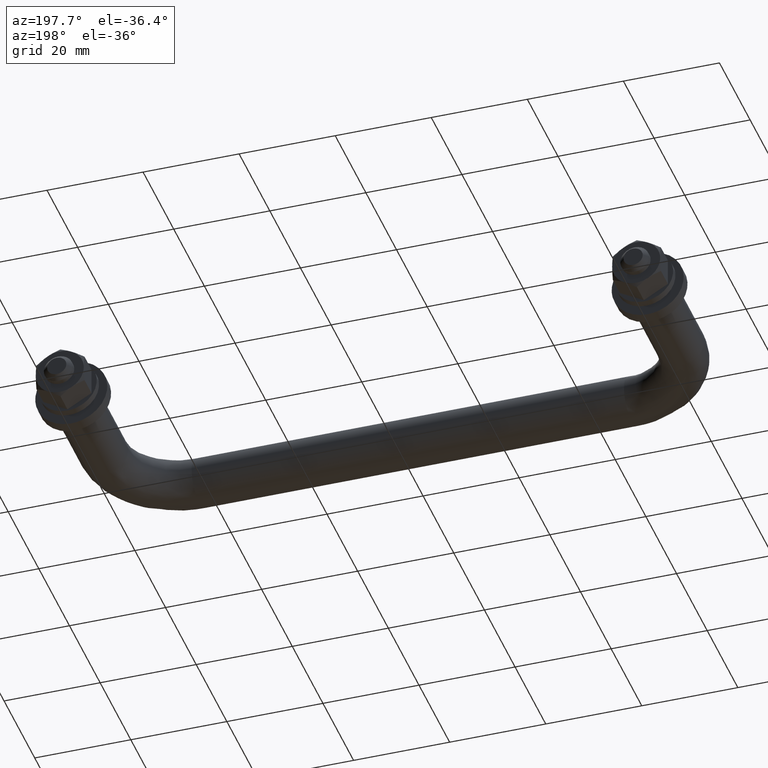
[diagram: clean part render]
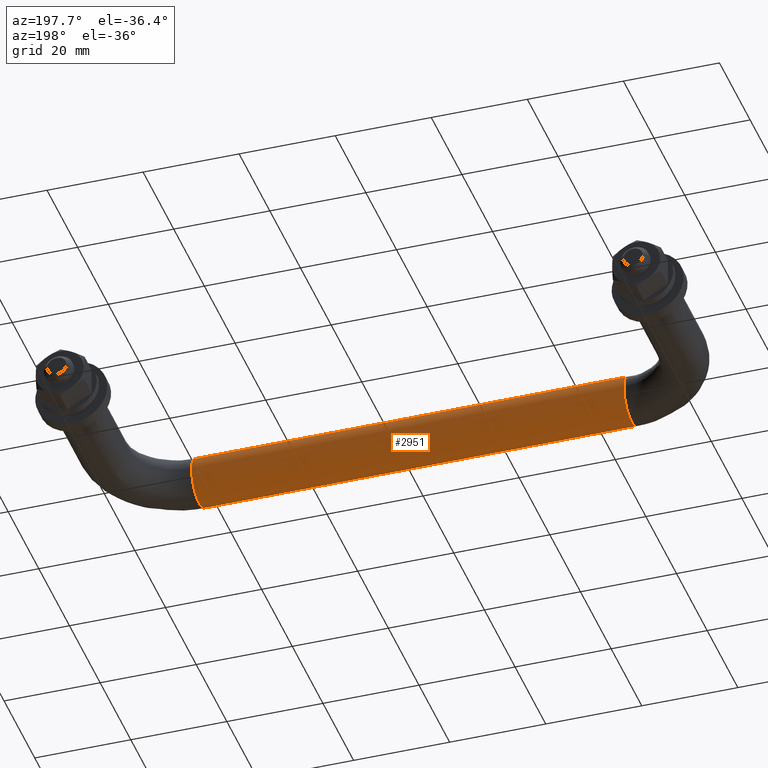
[diagram: same view with one face highlighted and labeled with its STEP entity id]
A machine part, auxiliary view. The second image highlights one B-rep face of the part: STEP entity #2951.
In plain terms, the highlighted face is a freeform B-spline surface patch.
Its self-contained STEP definition (entity closure, byte-faithful):
#2785=CARTESIAN_POINT('',(12.749999996253447,-38.040222708102142,3.969514565427370));
#2786=CARTESIAN_POINT('',(12.749999996253440,-38.389316865543059,3.702145856426702));
#2787=CARTESIAN_POINT('',(12.749999996253440,-38.686386684050618,3.377951038078300));
#2788=CARTESIAN_POINT('',(12.749999996253440,-42.064337722128919,-0.308435645972319));
#2789=CARTESIAN_POINT('',(12.749999996253440,-38.377951038078301,-3.686386684050619));
#2790=CARTESIAN_POINT('',(12.749999996253440,-34.691564354027683,-7.064337722128919));
#2791=CARTESIAN_POINT('',(12.749999996253440,-31.313613315949379,-3.377951038078300));
#2792=CARTESIAN_POINT('',(12.749999996253440,-27.935662277871085,0.308435645972319));
#2793=CARTESIAN_POINT('',(12.749999996253440,-31.622048961921699,3.686386684050619));
#2794=CARTESIAN_POINT('',(107.306250131250180,-38.040222708102128,3.969514565427370));
#2795=CARTESIAN_POINT('',(107.306250131250200,-38.389316865543044,3.702145856426702));
#2796=CARTESIAN_POINT('',(107.306250131250200,-38.686386684050603,3.377951038078300));
#2797=CARTESIAN_POINT('',(107.306250131250220,-42.064337722128904,-0.308435645972319));
#2798=CARTESIAN_POINT('',(107.306250131250200,-38.377951038078287,-3.686386684050619));
#2799=CARTESIAN_POINT('',(107.306250131250220,-34.691564354027676,-7.064337722128919));
#2800=CARTESIAN_POINT('',(107.306250131250200,-31.313613315949372,-3.377951038078300));
#2801=CARTESIAN_POINT('',(107.306250131250220,-27.935662277871071,0.308435645972319));
#2802=CARTESIAN_POINT('',(107.306250131250200,-31.622048961921688,3.686386684050619));
#2810=(BOUNDED_SURFACE()B_SPLINE_SURFACE(2,1,((#2785,#2794),(#2786,#2795),(#2787,#2796),(#2788,#2797),(#2789,#2798),(#2790,#2799),(#2791,#2800),(#2792,#2801),(#2793,#2802)),.UNSPECIFIED.,.F.,.F.,.U.)B_SPLINE_SURFACE_WITH_KNOTS((3,2,2,2,3),(2,2),(0.0,0.994112549695429,9.278383797157336,17.562655044619241,25.846926292081150),(0.0,94.556250134996802),.UNSPECIFIED.)GEOMETRIC_REPRESENTATION_ITEM()RATIONAL_B_SPLINE_SURFACE(((0.938140952186599,0.938140952186599),(0.964852813742386,0.964852813742386),(1.0,1.0),(0.707106781186548,0.707106781186548),(1.0,1.0),(0.707106781186548,0.707106781186548),(1.0,1.0),(0.707106781186548,0.707106781186548),(1.0,1.0)))REPRESENTATION_ITEM('')SURFACE());
#2811=CARTESIAN_POINT('',(105.0,-40.0,0.0));
#2812=VERTEX_POINT('',#2811);
#2813=CARTESIAN_POINT('',(105.000000000448300,-38.040222707736262,3.969514564947689));
#2814=VERTEX_POINT('',#2813);
#2815=CARTESIAN_POINT('',(105.0,-40.0,0.0));
#2816=CARTESIAN_POINT('',(105.000000000000010,-40.0,2.468535205870909));
#2817=CARTESIAN_POINT('',(105.000000000448340,-38.040222707736255,3.969514564947689));
#2825=(BOUNDED_CURVE()B_SPLINE_CURVE(2,(#2815,#2816,#2817),.UNSPECIFIED.,.F.,.U.)B_SPLINE_CURVE_WITH_KNOTS((3,3),(0.500000000000000,0.644916377166535),.UNSPECIFIED.)CURVE()GEOMETRIC_REPRESENTATION_ITEM()RATIONAL_B_SPLINE_CURVE((1.0,0.830219903331637,0.857271138856580))REPRESENTATION_ITEM(''));
#2826=EDGE_CURVE('',#2812,#2814,#2825,.T.);
#2827=ORIENTED_EDGE('',*,*,#2826,.T.);
#2828=CARTESIAN_POINT('',(15.0,-38.040222708103272,3.969514565426509));
#2829=VERTEX_POINT('',#2828);
#2830=CARTESIAN_POINT('',(15.0,-38.040222708103272,3.969514565426509));
#2831=CARTESIAN_POINT('',(105.000000000448300,-38.040222707736262,3.969514564947689));
#2832=QUASI_UNIFORM_CURVE('',1,(#2830,#2831),.UNSPECIFIED.,.F.,.U.);
#2833=EDGE_CURVE('',#2829,#2814,#2832,.T.);
#2834=ORIENTED_EDGE('',*,*,#2833,.F.);
#2835=CARTESIAN_POINT('',(15.0,-40.0,0.0));
#2836=VERTEX_POINT('',#2835);
#2837=CARTESIAN_POINT('',(15.0,-40.0,0.0));
#2838=CARTESIAN_POINT('',(15.000000000000004,-40.000000000000007,2.468535207006407));
#2839=CARTESIAN_POINT('',(14.999999999999998,-38.040222708103265,3.969514565426509));
#2847=(BOUNDED_CURVE()B_SPLINE_CURVE(2,(#2837,#2838,#2839),.UNSPECIFIED.,.F.,.U.)B_SPLINE_CURVE_WITH_KNOTS((3,3),(0.500000000000000,0.644916377221878),.UNSPECIFIED.)CURVE()GEOMETRIC_REPRESENTATION_ITEM()RATIONAL_B_SPLINE_CURVE((1.0,0.830219903266799,0.857271138877241))REPRESENTATION_ITEM(''));
#2848=EDGE_CURVE('',#2836,#2829,#2847,.T.);
#2849=ORIENTED_EDGE('',*,*,#2848,.F.);
#2850=CARTESIAN_POINT('',(14.999999999844659,-35.348666259216770,-4.987828369108522));
#2851=VERTEX_POINT('',#2850);
#2852=CARTESIAN_POINT('',(14.999999999844661,-35.348666259216778,-4.987828369108522));
#2853=CARTESIAN_POINT('',(15.000000000000007,-39.999999999999993,-4.662684233822515));
#2854=CARTESIAN_POINT('',(15.0,-40.0,0.0));
#2862=(BOUNDED_CURVE()B_SPLINE_CURVE(2,(#2852,#2853,#2854),.UNSPECIFIED.,.F.,.U.)B_SPLINE_CURVE_WITH_KNOTS((3,3),(0.262166313557243,0.500000000000000),.UNSPECIFIED.)CURVE()GEOMETRIC_REPRESENTATION_ITEM()RATIONAL_B_SPLINE_CURVE((0.972879876191681,0.721360504142046,1.0))REPRESENTATION_ITEM(''));
#2863=EDGE_CURVE('',#2851,#2836,#2862,.T.);
#2864=ORIENTED_EDGE('',*,*,#2863,.F.);
#2865=CARTESIAN_POINT('',(15.0,-30.0,0.0));
#2866=VERTEX_POINT('',#2865);
#2867=CARTESIAN_POINT('',(15.0,-30.0,0.0));
#2868=CARTESIAN_POINT('',(14.999999999999995,-30.000000000000004,-5.000000000000001));
#2869=CARTESIAN_POINT('',(15.0,-35.0,-5.0));
#2870=CARTESIAN_POINT('',(15.000000000000004,-35.174545580718032,-5.000000000000001));
#2871=CARTESIAN_POINT('',(14.999999999844663,-35.348666259216770,-4.987828369108522));
#2879=(BOUNDED_CURVE()B_SPLINE_CURVE(2,(#2867,#2868,#2869,#2870,#2871),.UNSPECIFIED.,.F.,.U.)B_SPLINE_CURVE_WITH_KNOTS((3,2,3),(0.0,0.250000000000000,0.262166313557243),.UNSPECIFIED.)CURVE()GEOMETRIC_REPRESENTATION_ITEM()RATIONAL_B_SPLINE_CURVE((1.0,0.707106781186548,1.0,0.985746277044502,0.972879876191681))REPRESENTATION_ITEM(''));
#2880=EDGE_CURVE('',#2866,#2851,#2879,.T.);
#2881=ORIENTED_EDGE('',*,*,#2880,.F.);
#2882=CARTESIAN_POINT('',(14.999999999824469,-31.622050203416730,3.686387821537513));
#2883=VERTEX_POINT('',#2882);
#2884=CARTESIAN_POINT('',(14.999999999824468,-31.622050203416741,3.686387821537513));
#2885=CARTESIAN_POINT('',(14.999999999999996,-30.0,2.200053659228634));
#2886=CARTESIAN_POINT('',(15.0,-30.0,0.0));
#2894=(BOUNDED_CURVE()B_SPLINE_CURVE(2,(#2884,#2885,#2886),.UNSPECIFIED.,.F.,.U.)B_SPLINE_CURVE_WITH_KNOTS((3,3),(0.868415158253308,1.0),.UNSPECIFIED.)CURVE()GEOMETRIC_REPRESENTATION_ITEM()RATIONAL_B_SPLINE_CURVE((0.853959787112173,0.845838768615010,1.0))REPRESENTATION_ITEM(''));
#2895=EDGE_CURVE('',#2883,#2866,#2894,.T.);
#2896=ORIENTED_EDGE('',*,*,#2895,.F.);
#2897=CARTESIAN_POINT('',(105.0,-31.622051120767932,3.686388662266402));
#2898=VERTEX_POINT('',#2897);
#2899=CARTESIAN_POINT('',(14.999999999824469,-31.622050203416730,3.686387821537513));
#2900=CARTESIAN_POINT('',(105.0,-31.622051120767932,3.686388662266402));
#2901=QUASI_UNIFORM_CURVE('',1,(#2899,#2900),.UNSPECIFIED.,.F.,.U.);
#2902=EDGE_CURVE('',#2883,#2898,#2901,.T.);
#2903=ORIENTED_EDGE('',*,*,#2902,.T.);
#2904=CARTESIAN_POINT('',(105.0,-30.0,0.0));
#2905=VERTEX_POINT('',#2904);
#2906=CARTESIAN_POINT('',(104.999999999999990,-31.622051120767932,3.686388662266402));
#2907=CARTESIAN_POINT('',(104.999999999999990,-30.000000000000011,2.200054401981904));
#2908=CARTESIAN_POINT('',(105.0,-30.0,0.0));
#2916=(BOUNDED_CURVE()B_SPLINE_CURVE(2,(#2906,#2907,#2908),.UNSPECIFIED.,.F.,.U.)B_SPLINE_CURVE_WITH_KNOTS((3,3),(0.868415120677811,1.0),.UNSPECIFIED.)CURVE()GEOMETRIC_REPRESENTATION_ITEM()RATIONAL_B_SPLINE_CURVE((0.853959791750278,0.845838724592578,1.0))REPRESENTATION_ITEM(''));
#2917=EDGE_CURVE('',#2898,#2905,#2916,.T.);
#2918=ORIENTED_EDGE('',*,*,#2917,.T.);
#2919=CARTESIAN_POINT('',(105.000000127957610,-34.937169908600652,-4.999605222376536));
#2920=VERTEX_POINT('',#2919);
#2921=CARTESIAN_POINT('',(105.0,-30.0,0.0));
#2922=CARTESIAN_POINT('',(104.999999999999990,-30.000000000000007,-4.937559862907233));
#2923=CARTESIAN_POINT('',(105.000000127957590,-34.937169908600659,-4.999605222376536));
#2931=(BOUNDED_CURVE()B_SPLINE_CURVE(2,(#2921,#2922,#2923),.UNSPECIFIED.,.F.,.U.)B_SPLINE_CURVE_WITH_KNOTS((3,3),(0.0,0.247784303521010),.UNSPECIFIED.)CURVE()GEOMETRIC_REPRESENTATION_ITEM()RATIONAL_B_SPLINE_CURVE((1.0,0.709702631081128,0.994854313134611))REPRESENTATION_ITEM(''));
#2932=EDGE_CURVE('',#2905,#2920,#2931,.T.);
#2933=ORIENTED_EDGE('',*,*,#2932,.T.);
#2934=CARTESIAN_POINT('',(105.000000127957580,-34.937169908600652,-4.999605222376536));
#2935=CARTESIAN_POINT('',(105.000000000000010,-34.968583768070758,-5.0));
#2936=CARTESIAN_POINT('',(105.0,-35.0,-5.0));
#2937=CARTESIAN_POINT('',(105.0,-39.999999999999993,-5.000000000000001));
#2938=CARTESIAN_POINT('',(105.0,-40.0,0.0));
#2946=(BOUNDED_CURVE()B_SPLINE_CURVE(2,(#2934,#2935,#2936,#2937,#2938),.UNSPECIFIED.,.F.,.U.)B_SPLINE_CURVE_WITH_KNOTS((3,2,3),(0.247784303521010,0.250000000000000,0.500000000000000),.UNSPECIFIED.)CURVE()GEOMETRIC_REPRESENTATION_ITEM()RATIONAL_B_SPLINE_CURVE((0.994854313134611,0.997404150105420,1.0,0.707106781186548,1.0))REPRESENTATION_ITEM(''));
#2947=EDGE_CURVE('',#2920,#2812,#2946,.T.);
#2948=ORIENTED_EDGE('',*,*,#2947,.T.);
#2949=EDGE_LOOP('',(#2827,#2834,#2849,#2864,#2881,#2896,#2903,#2918,#2933,#2948));
#2950=FACE_OUTER_BOUND('',#2949,.T.);
#2951=ADVANCED_FACE('',(#2950),#2810,.T.);